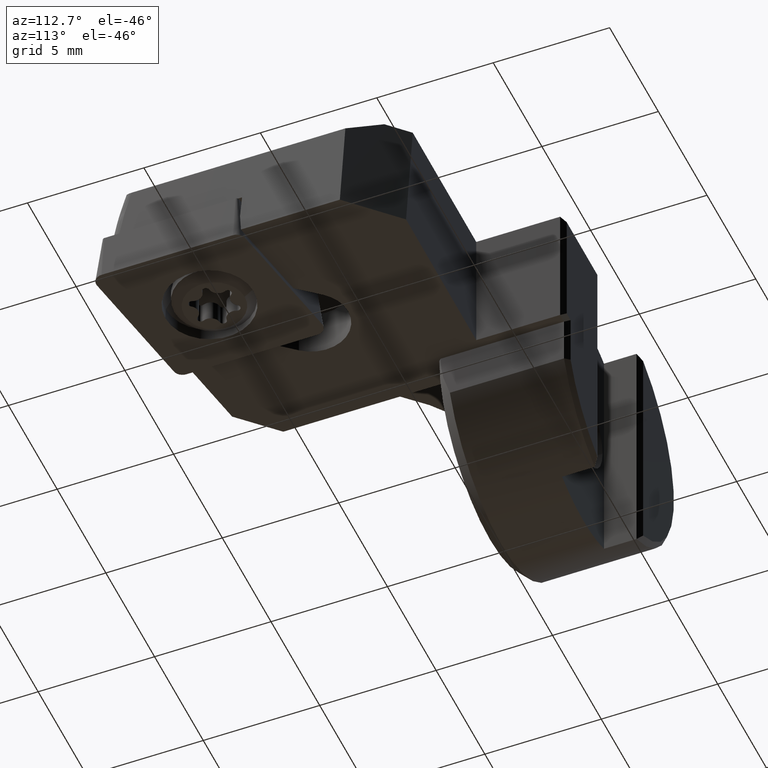
[diagram: clean part render]
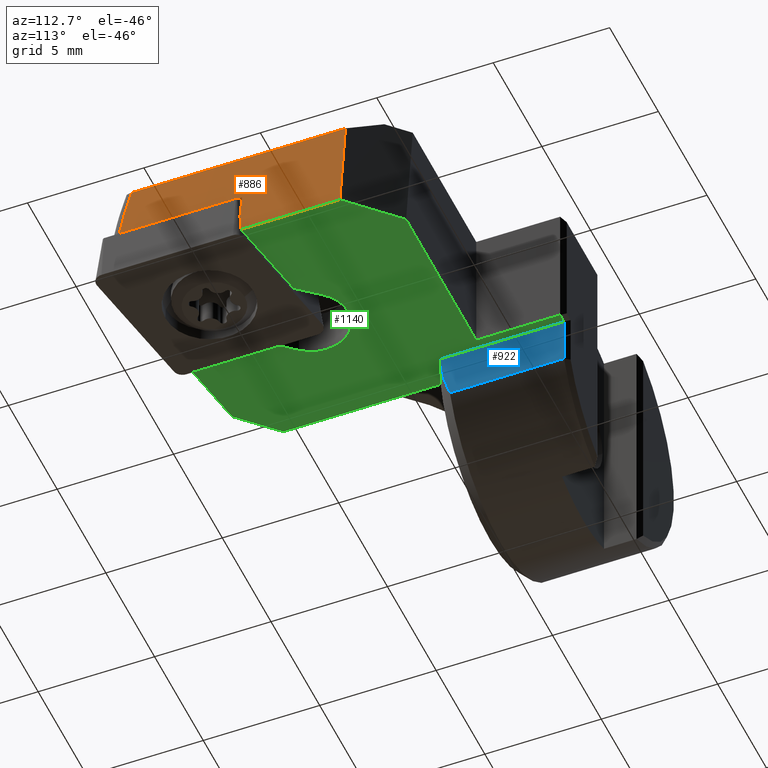
[diagram: same view with three faces highlighted in distinct colors, each labeled with its STEP entity id]
A machine part, auxiliary view with three faces highlighted in distinct colors.
Their STEP definitions:

[orange] entity #886 — the highlighted planar face has unit normal (-0.9925, 0, -0.1219).
#854=VERTEX_POINT('NONE',#2015);
#860=EDGE_CURVE('NONE',#1420,#1426,#2022,.T.);
#868=EDGE_CURVE('NONE',#1674,#1010,#2032,.F.);
#886=ADVANCED_FACE('NONE',(#2051),#2052,.F.);
#930=EDGE_CURVE('NONE',#1420,#1674,#2102,.F.);
#998=EDGE_CURVE('NONE',#854,#1446,#2182,.F.);
#1010=VERTEX_POINT('NONE',#2194);
#1114=EDGE_CURVE('NONE',#1464,#1010,#2308,.F.);
#1296=EDGE_CURVE('NONE',#1426,#854,#2509,.F.);
#1420=VERTEX_POINT('NONE',#2646);
#1426=VERTEX_POINT('NONE',#2653);
#1446=VERTEX_POINT('NONE',#2677);
#1464=VERTEX_POINT('NONE',#2697);
#1674=VERTEX_POINT('NONE',#2924);
#1678=EDGE_CURVE('NONE',#1446,#1464,#2929,.F.);
#2015=CARTESIAN_POINT('',(14.357123380245,-14.983905018633,4.60745384835867));
#2022=LINE('',#3410,#3411);
#2032=LINE('',#3424,#3425);
#2051=FACE_OUTER_BOUND('',#3448,.T.);
#2052=PLANE('',#3449);
#2102=LINE('',#3518,#3519);
#2182=B_SPLINE_CURVE_WITH_KNOTS('',3,(#4094,#4095,#4096,#4097),.UNSPECIFIED.,.F.,.F.,(4,4),(0.0,1.0),.UNSPECIFIED.);
#2194=CARTESIAN_POINT('',(14.8123414730835,-10.1343833076912,0.89999999999998));
#2308=LINE('',#4292,#4293);
#2509=LINE('',#4575,#4576);
#2646=CARTESIAN_POINT('',(14.9228475778961,-5.8,-1.11022302462516E-016));
#2653=CARTESIAN_POINT('',(14.357123380245,-5.8,4.60745384835867));
#2677=CARTESIAN_POINT('',(14.665,-15.3901409134782,2.09999999999999));
#2697=CARTESIAN_POINT('',(14.665,-10.1082704327833,2.10000000000001));
#2924=CARTESIAN_POINT('',(14.9228475778961,-10.0498279759112,0.0));
#2929=LINE('',#5215,#5216);
#3410=CARTESIAN_POINT('',(14.665,-5.8,2.09999999999997));
#3411=VECTOR('',#5570,1.0);
#3424=CARTESIAN_POINT('',(14.7121334873276,-10.2110588859044,1.71612855084528));
#3425=VECTOR('',#5588,1.0);
#3448=EDGE_LOOP('',(#5610,#5611,#5612,#5613,#5614,#5615,#5616));
#3449=AXIS2_PLACEMENT_3D('',#5617,#5618,#5619);
#3518=CARTESIAN_POINT('',(14.9228475778961,-20.34644189,-1.11022302462516E-016));
#3519=VECTOR('',#5693,1.0);
#4094=CARTESIAN_POINT('',(14.665,-15.3901409134782,2.09999999999999));
#4095=CARTESIAN_POINT('',(14.5616011854159,-15.2992312469747,2.9421157662148));
#4096=CARTESIAN_POINT('',(14.458783032229,-15.1635619180335,3.77950242485305));
#4097=CARTESIAN_POINT('',(14.357123380245,-14.983905018633,4.60745384835867));
#4292=CARTESIAN_POINT('',(13.9353706470139,-9.97896047255984,8.04235421473743));
#4293=VECTOR('',#5938,1.0);
#4575=CARTESIAN_POINT('',(14.357123380245,-18.5464418897245,4.60745384835867));
#4576=VECTOR('',#6206,1.0);
#5215=CARTESIAN_POINT('',(14.665,-16.69288378,2.09999999999998));
#5216=VECTOR('',#6687,1.0);
#5570=DIRECTION('',(-0.121869343405147,1.96261557335472E-017,0.992546151641322));
#5588=DIRECTION('',(0.121342912026979,0.0928472703204814,-0.988258712126965));
#5610=ORIENTED_EDGE('',*,*,#860,.T.);
#5611=ORIENTED_EDGE('',*,*,#1296,.T.);
#5612=ORIENTED_EDGE('',*,*,#998,.T.);
#5613=ORIENTED_EDGE('',*,*,#1678,.T.);
#5614=ORIENTED_EDGE('',*,*,#1114,.T.);
#5615=ORIENTED_EDGE('',*,*,#868,.F.);
#5616=ORIENTED_EDGE('',*,*,#930,.F.);
#5617=CARTESIAN_POINT('',(14.665,-20.69288378,2.09999999999997));
#5618=DIRECTION('',(-0.992546151641322,3.56526495195485E-016,-0.121869343405147));
#5619=DIRECTION('',(-4.07204444549029E-031,-1.0,-2.92548138222287E-015));
#5693=DIRECTION('',(3.59203946945858E-016,1.0,-4.87073995113048E-032));
#5938=DIRECTION('',(-0.121840927541207,0.0215934918592024,0.992314723001339));
#6206=DIRECTION('',(3.59203946945858E-016,1.0,-3.4863055968421E-032));
#6687=DIRECTION('',(9.67599537643338E-017,-1.0,-3.71352796603441E-015));

[blue] entity #922 — the highlighted planar face has unit normal (1, -0, 0).
#692=VERTEX_POINT('NONE',#1839);
#780=EDGE_CURVE('NONE',#1628,#1004,#1933,.T.);
#908=EDGE_CURVE('NONE',#692,#1452,#2076,.T.);
#922=ADVANCED_FACE('NONE',(#2093),#2094,.T.);
#1004=VERTEX_POINT('NONE',#2188);
#1040=EDGE_CURVE('NONE',#1004,#1452,#2225,.T.);
#1196=EDGE_CURVE('NONE',#1628,#692,#2395,.F.);
#1452=VERTEX_POINT('NONE',#2683);
#1628=VERTEX_POINT('NONE',#2875);
#1839=CARTESIAN_POINT('',(5.3,-0.199999999999996,-2.09761769634031));
#1933=(B_SPLINE_CURVE(2,(#3279,#3280,#3281),.UNSPECIFIED.,.F.,.F.)B_SPLINE_CURVE_WITH_KNOTS((3,3),(2.32114556375711,4.81326962677134),.UNSPECIFIED.)RATIONAL_B_SPLINE_CURVE((1.11486363636363,1.15693396226415,1.15693396226415))BOUNDED_CURVE()REPRESENTATION_ITEM('')GEOMETRIC_REPRESENTATION_ITEM()CURVE());
#2076=LINE('',#3483,#3484);
#2093=FACE_OUTER_BOUND('',#3504,.T.);
#2094=PLANE('',#3505);
#2188=CARTESIAN_POINT('',(5.3,-5.5,1.26952959787943E-015));
#2225=LINE('',#4158,#4159);
#2395=LINE('',#4413,#4414);
#2683=CARTESIAN_POINT('',(5.3,-0.199999999999996,1.25598587424067E-015));
#2875=CARTESIAN_POINT('',(5.3,-5.1,-2.09761769634031));
#3279=CARTESIAN_POINT('',(5.3,-5.1,-2.09761769634031));
#3280=CARTESIAN_POINT('',(5.3,-5.5,-1.01067034460033));
#3281=CARTESIAN_POINT('',(5.3,-5.5,3.64657589039845E-015));
#3483=CARTESIAN_POINT('',(5.3,-0.199999999999995,-1.28130764723124E-016));
#3484=VECTOR('',#5648,1.0);
#3504=EDGE_LOOP('',(#5679,#5680,#5681,#5682));
#3505=AXIS2_PLACEMENT_3D('',#5683,#5684,#5685);
#4158=CARTESIAN_POINT('',(5.3,-18.1999999997245,1.26952959787943E-015));
#4159=VECTOR('',#5832,1.0);
#4413=CARTESIAN_POINT('',(5.3,-20.0,-2.09761769634031));
#4414=VECTOR('',#6040,1.0);
#5648=DIRECTION('',(-5.10076676829454E-017,-8.71576399210525E-033,1.0));
#5679=ORIENTED_EDGE('',*,*,#1196,.T.);
#5680=ORIENTED_EDGE('',*,*,#908,.T.);
#5681=ORIENTED_EDGE('',*,*,#1040,.F.);
#5682=ORIENTED_EDGE('',*,*,#780,.F.);
#5683=CARTESIAN_POINT('',(5.3,-16.3999999994489,-5.26602168165859E-016));
#5684=DIRECTION('',(1.0,-0.0,5.10076676829454E-017));
#5685=DIRECTION('',(0.0,1.0,0.0));
#5832=DIRECTION('',(0.0,1.0,0.0));
#6040=DIRECTION('',(0.0,-1.0,0.0));

[green] entity #1140 — the highlighted planar face has unit normal (0, 0, 1).
#602=EDGE_CURVE('NONE',#1582,#684,#1744,.T.);
#662=EDGE_CURVE('NONE',#1452,#1528,#1808,.T.);
#664=EDGE_CURVE('NONE',#1404,#1624,#1810,.T.);
#684=VERTEX_POINT('NONE',#1831);
#738=EDGE_CURVE('NONE',#1298,#1004,#1888,.F.);
#814=VERTEX_POINT('NONE',#1968);
#836=VERTEX_POINT('NONE',#1995);
#882=VERTEX_POINT('NONE',#2047);
#902=EDGE_CURVE('NONE',#1176,#814,#2070,.F.);
#930=EDGE_CURVE('NONE',#1420,#1674,#2102,.F.);
#940=VERTEX_POINT('NONE',#2113);
#992=EDGE_CURVE('NONE',#1298,#814,#2175,.T.);
#1004=VERTEX_POINT('NONE',#2188);
#1034=VERTEX_POINT('NONE',#2219);
#1040=EDGE_CURVE('NONE',#1004,#1452,#2225,.T.);
#1044=EDGE_CURVE('NONE',#684,#1420,#2229,.T.);
#1124=VERTEX_POINT('NONE',#2318);
#1140=ADVANCED_FACE('NONE',(#2337),#2338,.F.);
#1176=VERTEX_POINT('NONE',#2375);
#1250=EDGE_CURVE('NONE',#1124,#1176,#2456,.T.);
#1298=VERTEX_POINT('NONE',#2511);
#1374=EDGE_CURVE('NONE',#1674,#836,#2597,.T.);
#1404=VERTEX_POINT('NONE',#2629);
#1420=VERTEX_POINT('NONE',#2646);
#1450=EDGE_CURVE('NONE',#940,#882,#2681,.T.);
#1452=VERTEX_POINT('NONE',#2683);
#1528=VERTEX_POINT('NONE',#2765);
#1582=VERTEX_POINT('NONE',#2822);
#1602=EDGE_CURVE('NONE',#882,#1034,#2845,.F.);
#1624=VERTEX_POINT('NONE',#2871);
#1626=EDGE_CURVE('NONE',#836,#940,#2873,.T.);
#1632=EDGE_CURVE('NONE',#1528,#1582,#2880,.T.);
#1674=VERTEX_POINT('NONE',#2924);
#1688=EDGE_CURVE('NONE',#1034,#1404,#2939,.T.);
#1690=EDGE_CURVE('NONE',#1624,#1124,#2941,.T.);
#1744=LINE('',#2997,#2998);
#1808=LINE('',#3095,#3096);
#1810=LINE('',#3099,#3100);
#1831=CARTESIAN_POINT('',(12.9078279269784,-3.8,-5.5300722445007E-017));
#1888=LINE('',#3211,#3212);
#1968=CARTESIAN_POINT('',(4.0,-5.6,1.44580722484615E-015));
#1995=CARTESIAN_POINT('',(11.1321452228076,-9.37801348715824,4.96508220873658E-016));
#2047=CARTESIAN_POINT('',(9.12058188871564,-7.86988378,6.17774334339115E-016));
#2070=LINE('',#3474,#3475);
#2102=LINE('',#3518,#3519);
#2113=CARTESIAN_POINT('',(10.346252997706,-8.44142360450154,0.0));
#2175=LINE('',#4083,#4084);
#2188=CARTESIAN_POINT('',(5.3,-5.5,1.26952959787943E-015));
#2219=CARTESIAN_POINT('',(7.89491077972527,-10.4983439554985,1.77635683940025E-015));
#2225=LINE('',#4158,#4159);
#2229=LINE('',#4164,#4165);
#2318=CARTESIAN_POINT('',(5.5468006574716,-14.3468006574717,1.23606387923872E-015));
#2337=FACE_OUTER_BOUND('',#4330,.T.);
#2338=PLANE('',#4331);
#2375=CARTESIAN_POINT('',(4.0,-12.8000000000001,1.77634066127026E-015));
#2456=LINE('',#4501,#4502);
#2511=CARTESIAN_POINT('',(5.2,-5.6,1.2830894153384E-015));
#2597=LINE('',#4712,#4713);
#2629=CARTESIAN_POINT('',(8.68190197032446,-11.436243534235,8.28756733211314E-016));
#2646=CARTESIAN_POINT('',(14.9228475778961,-5.8,-1.11022302462516E-016));
#2681=CIRCLE('',#4821,1.6);
#2683=CARTESIAN_POINT('',(5.3,-0.199999999999996,1.25598587424067E-015));
#2765=CARTESIAN_POINT('',(5.7,-0.199999999999996,9.22067587210548E-016));
#2822=CARTESIAN_POINT('',(5.7,-3.8,9.22067587210547E-016));
#2845=CIRCLE('',#5095,1.6);
#2871=CARTESIAN_POINT('',(8.68190197032446,-14.8996036061821,1.33226762955019E-015));
#2873=LINE('',#5130,#5131);
#2880=LINE('',#5139,#5140);
#2924=CARTESIAN_POINT('',(14.9228475778961,-10.0498279759112,0.0));
#2939=LINE('',#5232,#5233);
#2941=LINE('',#5236,#5237);
#2997=CARTESIAN_POINT('',(12.5,-3.8,1.33239526416789E-031));
#2998=VECTOR('',#5287,1.0);
#3095=CARTESIAN_POINT('',(9.65,-0.199999999999996,6.66133814775094E-016));
#3096=VECTOR('',#5356,1.0);
#3099=CARTESIAN_POINT('',(8.68190197032446,-18.6929158735577,8.28756733211314E-016));
#3100=VECTOR('',#5357,1.0);
#3211=CARTESIAN_POINT('',(5.7,-5.1,1.21529032804351E-015));
#3212=VECTOR('',#5422,1.0);
#3474=CARTESIAN_POINT('',(4.0,2.62203518450277,1.44580722484615E-015));
#3475=VECTOR('',#5644,1.0);
#3518=CARTESIAN_POINT('',(14.9228475778961,-20.34644189,-1.11022302462516E-016));
#3519=VECTOR('',#5693,1.0);
#4083=CARTESIAN_POINT('',(5.05,-5.6,8.88178419700125E-016));
#4084=VECTOR('',#5802,1.0);
#4158=CARTESIAN_POINT('',(5.3,-18.1999999997245,1.26952959787943E-015));
#4159=VECTOR('',#5832,1.0);
#4164=CARTESIAN_POINT('',(19.510279208486,-10.3532376108597,-5.64806851361754E-016));
#4165=VECTOR('',#5833,1.0);
#4330=EDGE_LOOP('',(#5975,#5976,#5977,#5978,#5979,#5980,#5981,#5982,#5983,#5984,#5985,#5986,#5987,#5988,#5989,#5990,#5991));
#4331=AXIS2_PLACEMENT_3D('',#5992,#5993,#5994);
#4501=CARTESIAN_POINT('',(6.02499999999994,-14.825,7.18675513394388E-016));
#4502=VECTOR('',#6133,1.0);
#4712=CARTESIAN_POINT('',(14.7604362673917,-10.021044320189,4.51857834758E-018));
#4713=VECTOR('',#6335,1.0);
#4821=AXIS2_PLACEMENT_3D('',#6430,#6431,#6432);
#5095=AXIS2_PLACEMENT_3D('',#6593,#6594,#6595);
#5130=CARTESIAN_POINT('',(16.3939422533796,-15.648779001844,-2.96426693218242E-017));
#5131=VECTOR('',#6626,1.0);
#5139=CARTESIAN_POINT('',(5.7,-10.0,9.22067587210547E-016));
#5140=VECTOR('',#6635,1.0);
#5232=CARTESIAN_POINT('',(12.5903909797567,-16.0941993528409,1.02473451540483E-015));
#5233=VECTOR('',#6698,1.0);
#5236=CARTESIAN_POINT('',(20.0,-16.8952896591174,-7.23763568590435E-016));
#5237=VECTOR('',#6699,1.0);
#5287=DIRECTION('',(1.0,1.21309333984392E-016,-1.35598174589786E-016));
#5356=DIRECTION('',(1.0,1.74315279842105E-032,-1.35598174589786E-016));
#5357=DIRECTION('',(2.18539522381266E-016,-1.0,-2.96335603106234E-032));
#5422=DIRECTION('',(-0.707106781186548,-0.707106781186547,9.58823887689554E-017));
#5644=DIRECTION('',(1.0842021724855E-016,-1.0,-1.32776472016298E-032));
#5693=DIRECTION('',(3.59203946945858E-016,1.0,-4.87073995113048E-032));
#5802=DIRECTION('',(-1.0,-1.44560289664734E-016,1.35598174589786E-016));
#5832=DIRECTION('',(0.0,1.0,0.0));
#5833=DIRECTION('',(0.709747006865425,-0.704456660303223,-9.62403985515163E-017));
#5975=ORIENTED_EDGE('',*,*,#1040,.T.);
#5976=ORIENTED_EDGE('',*,*,#662,.T.);
#5977=ORIENTED_EDGE('',*,*,#1632,.T.);
#5978=ORIENTED_EDGE('',*,*,#602,.T.);
#5979=ORIENTED_EDGE('',*,*,#1044,.T.);
#5980=ORIENTED_EDGE('',*,*,#930,.T.);
#5981=ORIENTED_EDGE('',*,*,#1374,.T.);
#5982=ORIENTED_EDGE('',*,*,#1626,.T.);
#5983=ORIENTED_EDGE('',*,*,#1450,.T.);
#5984=ORIENTED_EDGE('',*,*,#1602,.T.);
#5985=ORIENTED_EDGE('',*,*,#1688,.T.);
#5986=ORIENTED_EDGE('',*,*,#664,.T.);
#5987=ORIENTED_EDGE('',*,*,#1690,.T.);
#5988=ORIENTED_EDGE('',*,*,#1250,.T.);
#5989=ORIENTED_EDGE('',*,*,#902,.T.);
#5990=ORIENTED_EDGE('',*,*,#992,.F.);
#5991=ORIENTED_EDGE('',*,*,#738,.T.);
#5992=CARTESIAN_POINT('',(19.3,-20.0,-6.28844846377585E-016));
#5993=DIRECTION('',(1.35598174589786E-016,0.0,1.0));
#5994=DIRECTION('',(0.0,-1.0,0.0));
#6133=DIRECTION('',(-0.707106781186544,0.707106781186551,9.58823887689549E-017));
#6335=DIRECTION('',(-0.98465584142245,0.174507518326997,1.33517534696054E-016));
#6430=CARTESIAN_POINT('',(9.12058188871564,-9.46988378,3.5527136788005E-014));
#6431=DIRECTION('',(1.35598174589786E-016,5.79249507708971E-048,1.0));
#6432=DIRECTION('',(-4.27180903770515E-032,1.0,0.0));
#6593=CARTESIAN_POINT('',(9.12058188871564,-9.46988378,3.5527136788005E-014));
#6594=DIRECTION('',(-1.35598174589786E-016,-5.79249507708971E-048,-1.0));
#6595=DIRECTION('',(-4.27180903770515E-032,1.0,0.0));
#6626=DIRECTION('',(-0.642787609686538,0.766044443118979,8.71608265224267E-017));
#6635=DIRECTION('',(2.28253088944317E-016,-1.0,-3.09507022053295E-032));
#6698=DIRECTION('',(0.642787609686538,-0.766044443118979,-8.71608265224267E-017));
#6699=DIRECTION('',(-0.984807753012207,0.173648177666934,1.33538133630325E-016));